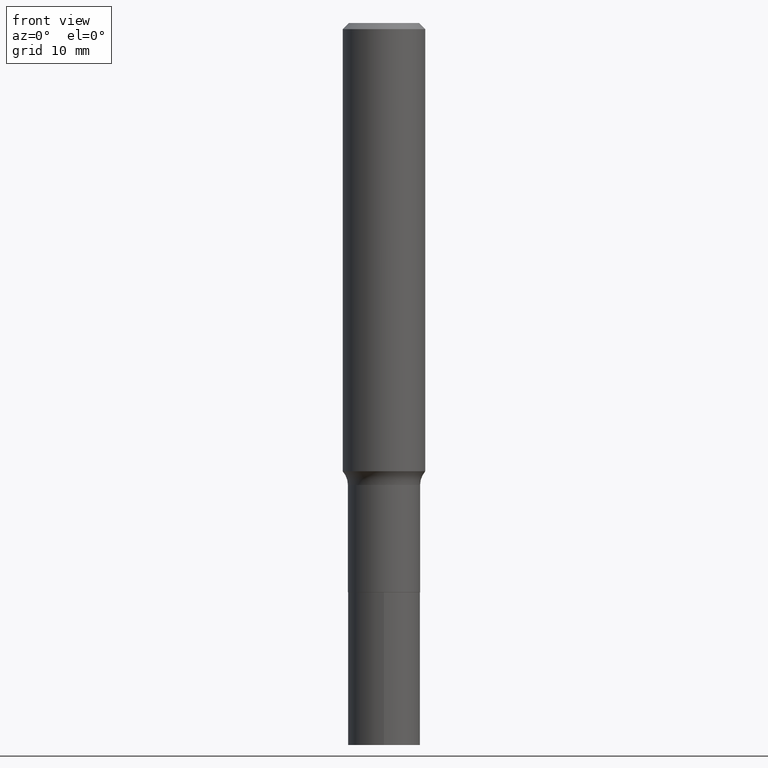
[diagram: clean part render]
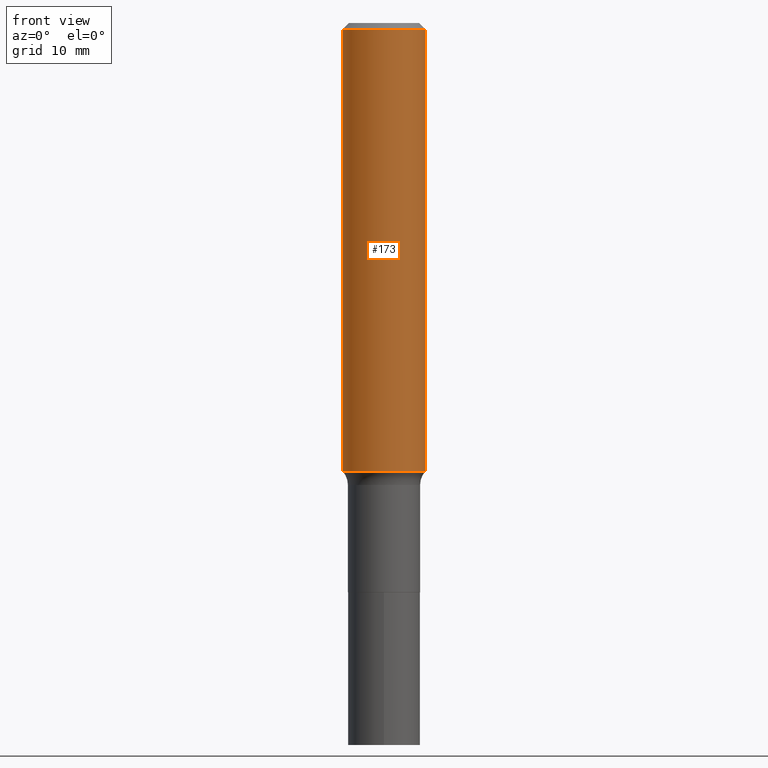
[diagram: same view with one face highlighted and labeled with its STEP entity id]
A machine part, front view. The second image highlights one B-rep face of the part: STEP entity #173.
In plain terms, the highlighted cylindrical surface (partial cylindrical patch) has radius 4.0005 mm, axis along (-0, 0, 1).
Its self-contained STEP definition (entity closure, byte-faithful):
#4 = CARTESIAN_POINT ( 'NONE',  ( 0.1575000000000000844, -1.099816621735587677E-15, 7.679978421878603638E-30 ) ) ;
#5 = DIRECTION ( 'NONE',  ( -2.445468806185136597E-29, 3.491481338843145583E-15, 1.000000000000000000 ) ) ;
#29 = CYLINDRICAL_SURFACE ( 'NONE', #90, 0.1575000000000000844 ) ;
#31 = DIRECTION ( 'NONE',  ( 1.000000000000000000, -6.982962677686265922E-15, 0.000000000000000000 ) ) ;
#35 = CARTESIAN_POINT ( 'NONE',  ( 5.777420054612418477E-31, -8.248624663016979071E-17, -0.02362500000000013547 ) ) ;
#90 = AXIS2_PLACEMENT_3D ( 'NONE', #237, #275, #245 ) ;
#103 = EDGE_LOOP ( 'NONE', ( #431, #261, #155, #119 ) ) ;
#104 = DIRECTION ( 'NONE',  ( 1.000000000000000000, -6.982962677686265922E-15, 0.000000000000000000 ) ) ;
#119 = ORIENTED_EDGE ( 'NONE', *, *, #307, .F. ) ;
#126 = CIRCLE ( 'NONE', #380, 0.1575000000000001954 ) ;
#133 = FACE_OUTER_BOUND ( 'NONE', #103, .T. ) ;
#155 = ORIENTED_EDGE ( 'NONE', *, *, #354, .T. ) ;
#173 = ADVANCED_FACE ( 'NONE', ( #133 ), #29, .T. ) ;
#184 = VERTEX_POINT ( 'NONE', #361 ) ;
#211 = DIRECTION ( 'NONE',  ( -2.445468806185136877E-29, 3.491481338843145188E-15, 1.000000000000000000 ) ) ;
#216 = LINE ( 'NONE', #363, #408 ) ;
#227 = VERTEX_POINT ( 'NONE', #400 ) ;
#237 = CARTESIAN_POINT ( 'NONE',  ( 0.000000000000000000, 0.000000000000000000, 0.000000000000000000 ) ) ;
#244 = EDGE_CURVE ( 'NONE', #412, #227, #126, .T. ) ;
#245 = DIRECTION ( 'NONE',  ( 1.000000000000000000, -6.982962677686267499E-15, 4.876176775795936353E-29 ) ) ;
#252 = EDGE_CURVE ( 'NONE', #412, #341, #216, .T. ) ;
#261 = ORIENTED_EDGE ( 'NONE', *, *, #244, .T. ) ;
#274 = AXIS2_PLACEMENT_3D ( 'NONE', #35, #5, #31 ) ;
#275 = DIRECTION ( 'NONE',  ( -2.445468806185136597E-29, 3.491481338843145583E-15, 1.000000000000000000 ) ) ;
#277 = CARTESIAN_POINT ( 'NONE',  ( 4.184263395270983918E-29, -5.974019183742183514E-15, -1.711027098234926713 ) ) ;
#282 = DIRECTION ( 'NONE',  ( -2.445468806185136877E-29, 3.491481338843145188E-15, 1.000000000000000000 ) ) ;
#298 = CIRCLE ( 'NONE', #274, 0.1575000000000000011 ) ;
#307 = EDGE_CURVE ( 'NONE', #341, #184, #298, .T. ) ;
#323 = CARTESIAN_POINT ( 'NONE',  ( -0.1575000000000000011, -1.909147906364017274E-15, -0.02362500000000013547 ) ) ;
#341 = VERTEX_POINT ( 'NONE', #323 ) ;
#354 = EDGE_CURVE ( 'NONE', #227, #184, #399, .T. ) ;
#361 = CARTESIAN_POINT ( 'NONE',  ( 0.1575000000000000011, -1.182302868365756679E-15, -0.02362500000000013547 ) ) ;
#363 = CARTESIAN_POINT ( 'NONE',  ( -0.1575000000000000844, 1.119104808822158392E-15, -7.747322767151481189E-30 ) ) ;
#380 = AXIS2_PLACEMENT_3D ( 'NONE', #277, #466, #104 ) ;
#399 = LINE ( 'NONE', #4, #453 ) ;
#400 = CARTESIAN_POINT ( 'NONE',  ( 0.1575000000000002787, -7.073835805477772572E-15, -1.711027098234926713 ) ) ;
#408 = VECTOR ( 'NONE', #211, 39.37007874015748143 ) ;
#412 = VERTEX_POINT ( 'NONE', #444 ) ;
#431 = ORIENTED_EDGE ( 'NONE', *, *, #252, .F. ) ;
#444 = CARTESIAN_POINT ( 'NONE',  ( -0.1575000000000002787, -4.854914374920024333E-15, -1.711027098234926713 ) ) ;
#453 = VECTOR ( 'NONE', #282, 39.37007874015748143 ) ;
#466 = DIRECTION ( 'NONE',  ( -2.445468806185136597E-29, 3.491481338843145583E-15, 1.000000000000000000 ) ) ;